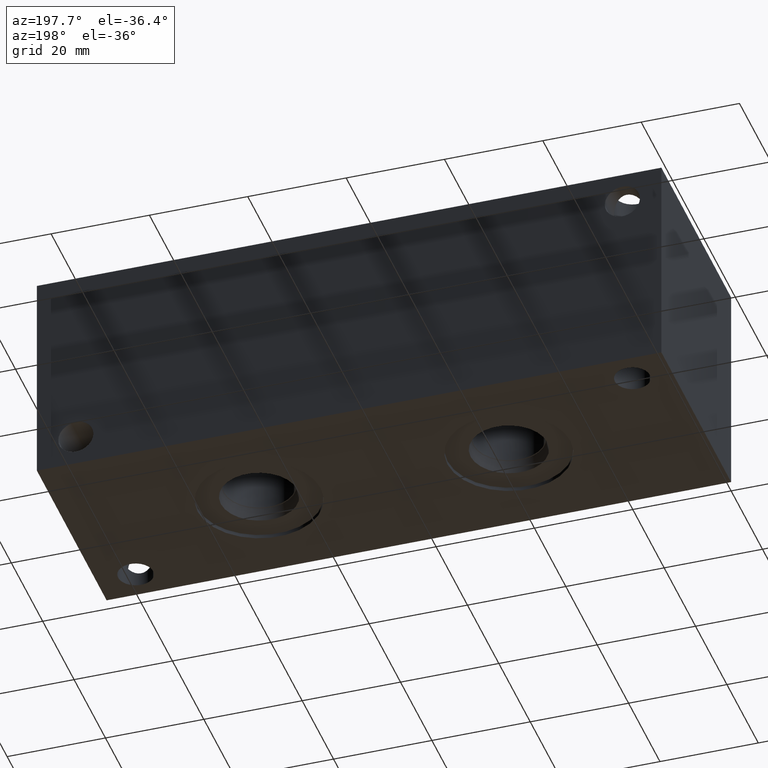
[diagram: clean part render]
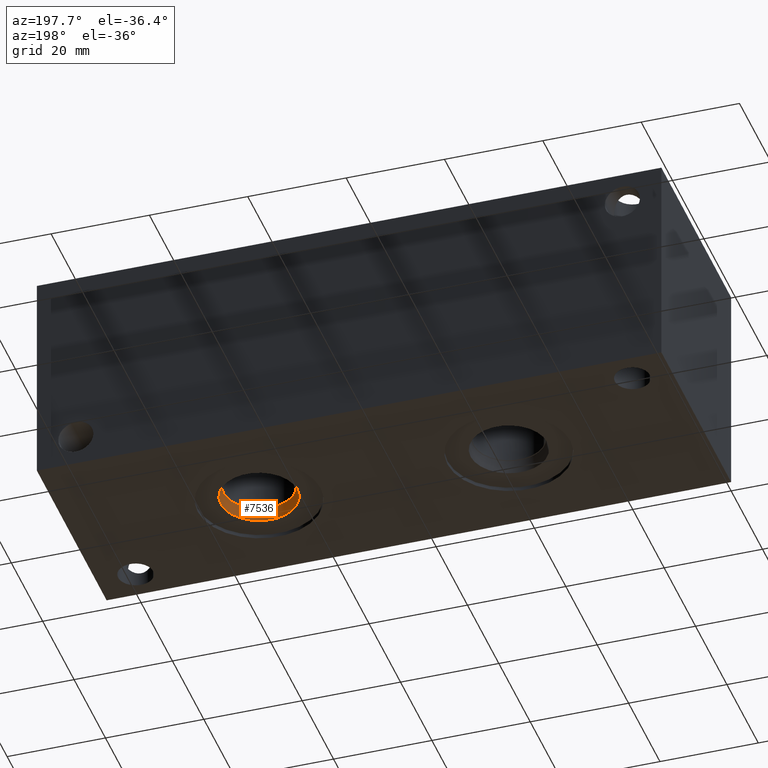
[diagram: same view with one face highlighted and labeled with its STEP entity id]
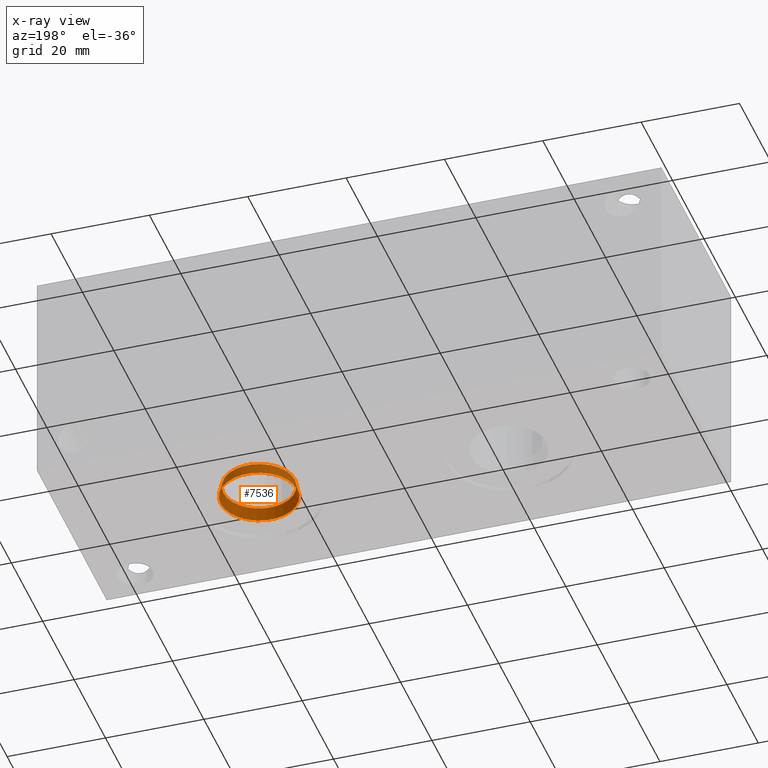
[diagram: x-ray of the same camera — body ghosted, the highlighted face saturated]
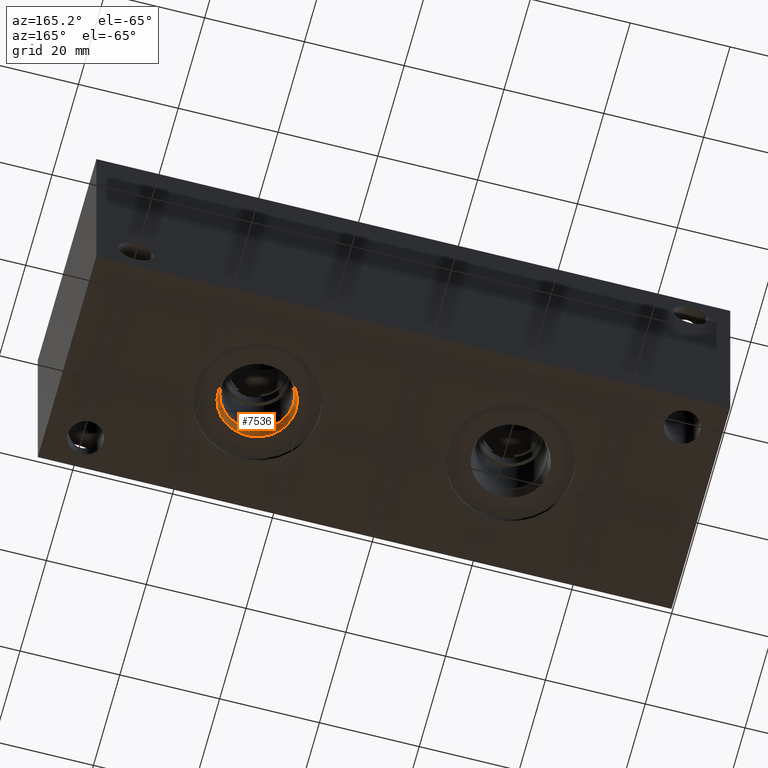
[diagram: same view with one face highlighted and labeled with its STEP entity id]
A machine part, auxiliary view. The second image highlights one B-rep face of the part: STEP entity #7536.
The next image is the same camera in x-ray: the body ghosted, the highlighted face saturated — about 0% of this face is hidden behind the body in this view.
A second angle (auxiliary view) of the same face is appended — the face is thin or edge-on in the first view.
In plain terms, the highlighted conical surface has half-angle 12.038 deg.
Its self-contained STEP definition (entity closure, byte-faithful):
#33=CONICAL_SURFACE('',#7849,7.5311,0.210103251840966);
#113=CIRCLE('',#7847,7.79780000000001);
#114=CIRCLE('',#7848,7.79780000000001);
#115=CIRCLE('',#7850,7.2644);
#116=CIRCLE('',#7851,7.2644);
#929=FACE_OUTER_BOUND('',#1351,.T.);
#1351=EDGE_LOOP('',(#6280,#6281,#6282,#6283,#6284,#6285));
#2086=LINE('',#12733,#2767);
#2767=VECTOR('',#9130,7.5311);
#3392=VERTEX_POINT('',#12727);
#3393=VERTEX_POINT('',#12728);
#3394=VERTEX_POINT('',#12732);
#3395=VERTEX_POINT('',#12734);
#4378=EDGE_CURVE('',#3392,#3393,#113,.T.);
#4379=EDGE_CURVE('',#3393,#3392,#114,.T.);
#4380=EDGE_CURVE('',#3393,#3394,#2086,.T.);
#4381=EDGE_CURVE('',#3394,#3395,#115,.T.);
#4382=EDGE_CURVE('',#3395,#3394,#116,.T.);
#6280=ORIENTED_EDGE('',*,*,#4378,.F.);
#6281=ORIENTED_EDGE('',*,*,#4379,.F.);
#6282=ORIENTED_EDGE('',*,*,#4380,.T.);
#6283=ORIENTED_EDGE('',*,*,#4381,.T.);
#6284=ORIENTED_EDGE('',*,*,#4382,.T.);
#6285=ORIENTED_EDGE('',*,*,#4380,.F.);
#7536=ADVANCED_FACE('',(#929),#33,.F.);
#7847=AXIS2_PLACEMENT_3D('',#12729,#9124,#9125);
#7848=AXIS2_PLACEMENT_3D('',#12730,#9126,#9127);
#7849=AXIS2_PLACEMENT_3D('',#12731,#9128,#9129);
#7850=AXIS2_PLACEMENT_3D('',#12735,#9131,#9132);
#7851=AXIS2_PLACEMENT_3D('',#12736,#9133,#9134);
#9124=DIRECTION('center_axis',(0.,0.,1.));
#9125=DIRECTION('ref_axis',(1.,0.,0.));
#9126=DIRECTION('center_axis',(0.,0.,1.));
#9127=DIRECTION('ref_axis',(1.,0.,0.));
#9128=DIRECTION('center_axis',(0.,0.,-1.));
#9129=DIRECTION('ref_axis',(1.,0.,0.));
#9130=DIRECTION('',(0.208560882227198,2.55413416846886E-17,0.978009385642394));
#9131=DIRECTION('center_axis',(0.,0.,1.));
#9132=DIRECTION('ref_axis',(1.,0.,0.));
#9133=DIRECTION('center_axis',(0.,0.,1.));
#9134=DIRECTION('ref_axis',(1.,0.,0.));
#12727=CARTESIAN_POINT('',(96.6978,22.225,0.7874));
#12728=CARTESIAN_POINT('',(81.1022,22.225,0.787399999999998));
#12729=CARTESIAN_POINT('Origin',(88.9,22.225,0.7874));
#12730=CARTESIAN_POINT('Origin',(88.9,22.225,0.7874));
#12731=CARTESIAN_POINT('Origin',(88.9,22.225,2.0380425));
#12732=CARTESIAN_POINT('',(81.6356,22.225,3.288685));
#12733=CARTESIAN_POINT('',(81.3689,22.225,2.0380425));
#12734=CARTESIAN_POINT('',(96.1644,22.225,3.288685));
#12735=CARTESIAN_POINT('Origin',(88.9,22.225,3.288685));
#12736=CARTESIAN_POINT('Origin',(88.9,22.225,3.288685));